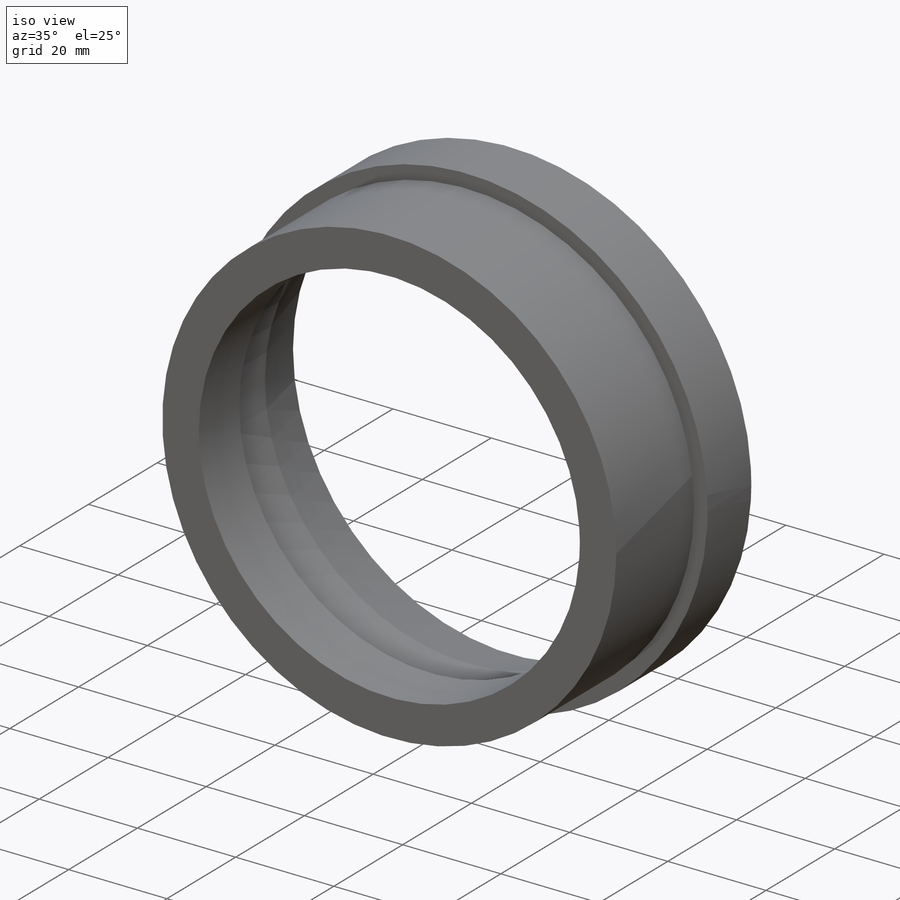
[diagram: iso view]
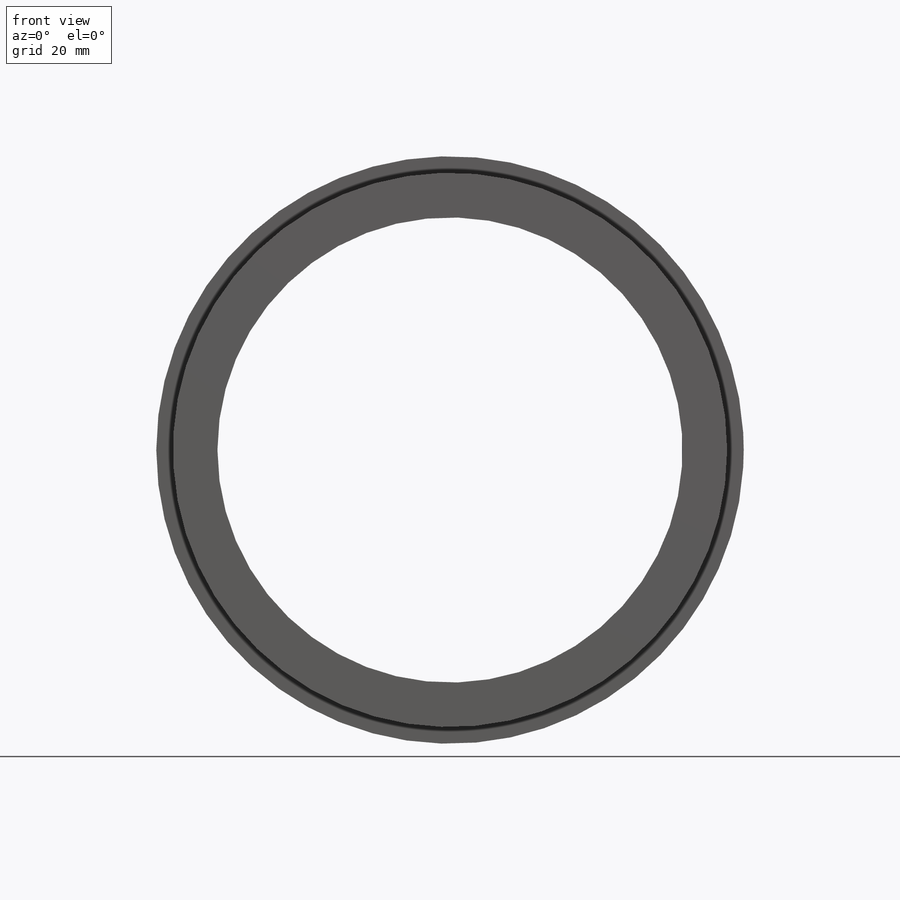
[diagram: front view]
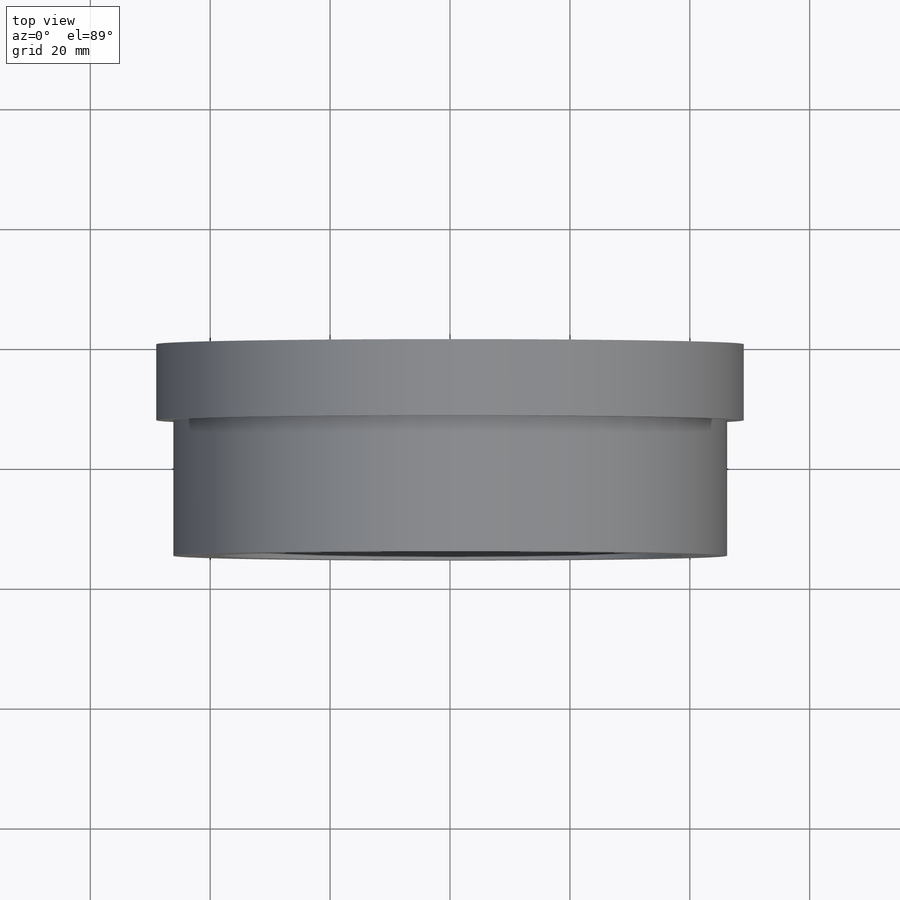
[diagram: top view]
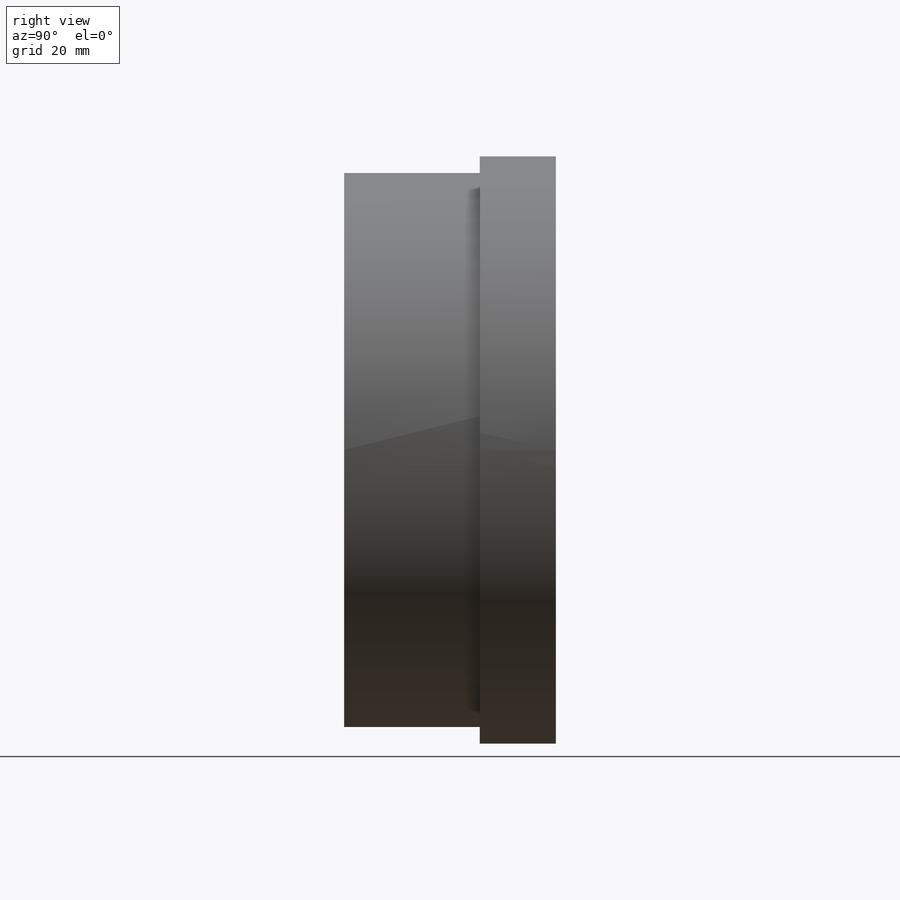
[diagram: right view]
SOLIDWORKS PART (.sldprt)
format: sldprt  version: not decoded by parser v0  size: 204,288 bytes
history: native  units: mm
features: sketch x3, cut_extrude x2, material x1, extrude x1, chamfer x1 (+12 scaffold rows collapsed)
feature tree (20):
  scaffold x12  (default folders/planes/origin — collapsed)
  material  "Material <not specified>"
  sketch  "Sketch1"  dims[D1=77.597mm D2=98.0mm]
  extrude  "Extrude1"  Depth=35.306mm
  sketch  "Sketch2"  dims[D1=~61.349257mm]
  cut_extrude  "Extrude2"  Depth=22.606mm
  sketch  "Sketch3"  dims[D1=82.3214mm]
  cut_extrude  "Extrude3"  Depth=23.5712mm
  chamfer  "Chamfer1"  Distance=3.175mm
decode coverage: 7 of 7 modeling features carry decoded parameters
note: ~ marks probable driven/reference dimensions
note: suppression state not decoded; provenance and decode notes live in map.json
